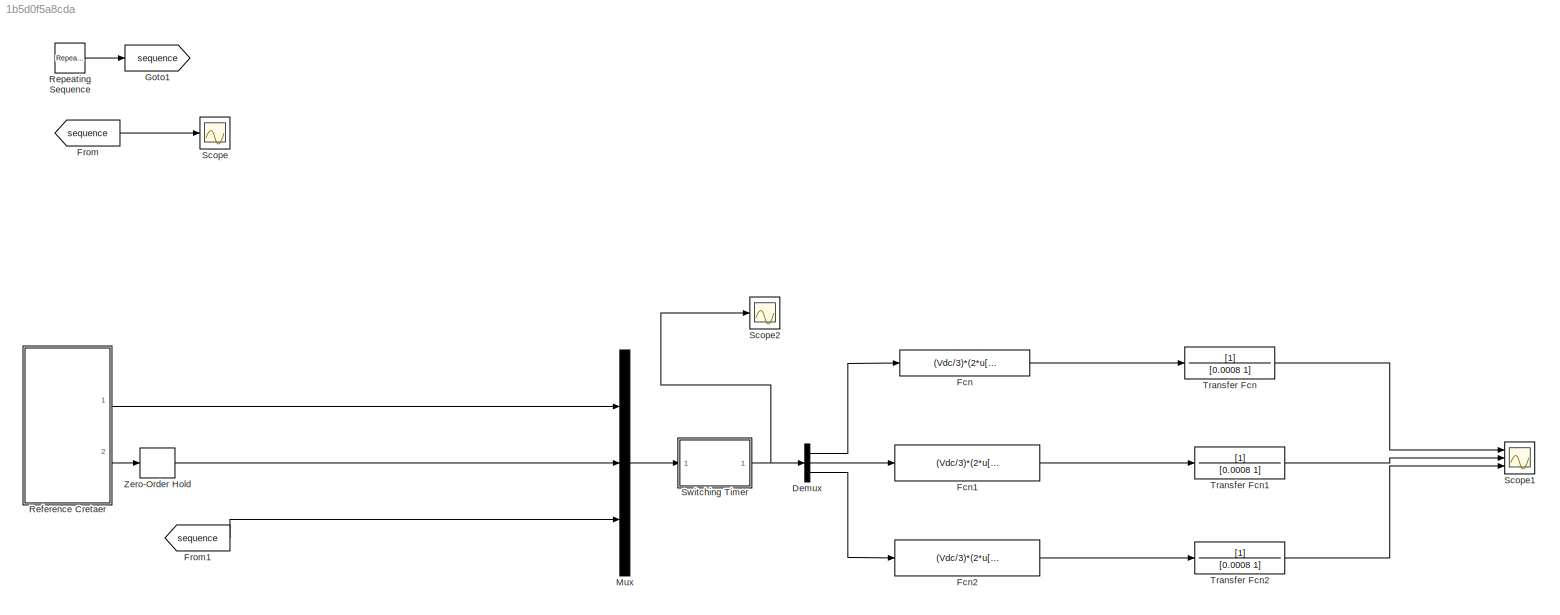
MODEL slx_1b5d0f5a8cda
KIND model
CONFIG AbsTol = auto
CONFIG EnableMultiTasking = off
CONFIG FixedStep = 1e-5
CONFIG MaxStep = auto
CONFIG MinStep = auto
CONFIG RelTol = 1e-3
CONFIG SampleTimeConstraint = Unconstrained
CONFIG Solver = FixedStepDiscrete
CONFIG SolverName = FixedStepDiscrete
CONFIG StartTime = 0.0
CONFIG StopTime = 0.2
BLOCK [Demux] Demux
  DisplayOption = bar
  Outputs = 3
  Ports = [1, 3]
BLOCK [Fcn] Fcn
  Commented = on
  Expr = (Vdc/3)*(2*u[1]-u[2]-u[3])
BLOCK [Fcn] Fcn1
  Commented = on
  Expr = (Vdc/3)*(2*u[2]-u[1]-u[3])
BLOCK [Fcn] Fcn2
  Commented = on
  Expr = (Vdc/3)*(2*u[3]-u[2]-u[1])
BLOCK [From] From
  GotoTag = sequence
BLOCK [From] From1
  GotoTag = sequence
BLOCK [Goto] Goto1
  GotoTag = sequence
BLOCK [Mux] Mux
  DisplayOption = bar
  Inputs = 3
  Ports = [3, 1]
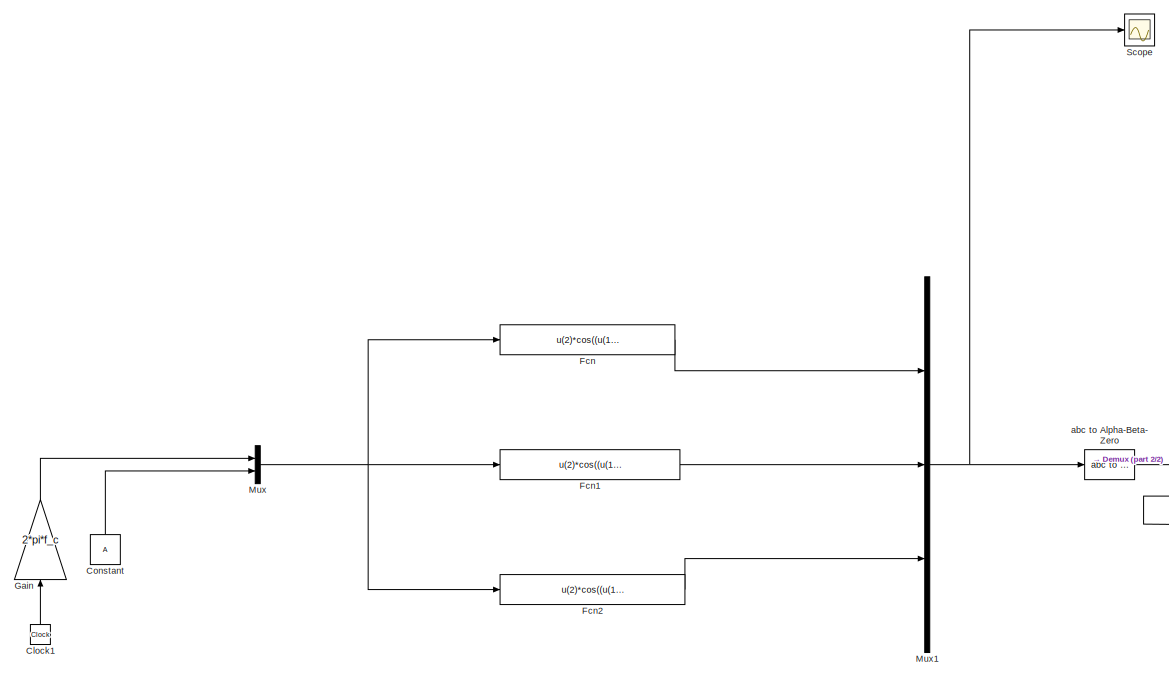
[diagram: Reference Cretaer - part 1/2, left side, full height]
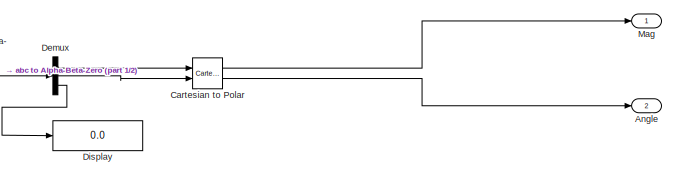
[diagram: Reference Cretaer - part 2/2, bottom right region]
BLOCK [SubSystem] Reference Cretaer
  Ports = [0, 2]
  RequestExecContextInheritance = off
BLOCK [Outport] Reference Cretaer/Angle
  IconDisplay = Port number
  Port = 2
BLOCK [Reference] Reference Cretaer/Cartesian to Polar  REF=simulink_extras/Transformations/Cartesian to
Polar
  Ports = [2, 2]
  SourceBlock = simulink_extras/Transformations/Cartesian to\nPolar
  SourceProductBaseCode = SL
  SourceProductName = Simulink
  SourceType = Cart2Polar
BLOCK [Clock] Reference Cretaer/Clock1
BLOCK [Constant] Reference Cretaer/Constant
  Value = A
BLOCK [Demux] Reference Cretaer/Demux
  DisplayOption = bar
  Outputs = 3
  Ports = [1, 3]
BLOCK [Display] Reference Cretaer/Display
  Decimation = 1
  Ports = [1]
BLOCK [Fcn] Reference Cretaer/Fcn
  Expr = u(2)*cos((u(1)))
BLOCK [Fcn] Reference Cretaer/Fcn1
  Expr = u(2)*cos((u(1))-2*pi/3)
BLOCK [Fcn] Reference Cretaer/Fcn2
  Expr = u(2)*cos((u(1))+2*pi/3)
BLOCK [Gain] Reference Cretaer/Gain
  Gain = 2*pi*f_c
  OutDataTypeStr = Inherit: Inherit via internal rule
  ParamDataTypeStr = Inherit: Inherit via internal rule
  SaturateOnIntegerOverflow = off
BLOCK [Outport] Reference Cretaer/Mag 
  IconDisplay = Port number
BLOCK [Mux] Reference Cretaer/Mux
  DisplayOption = bar
  Inputs = 2
  Ports = [2, 1]
BLOCK [Mux] Reference Cretaer/Mux1
  DisplayOption = bar
  Inputs = 3
  Ports = [3, 1]
BLOCK [Scope] Reference Cretaer/Scope
  Floating = off
  NumInputPorts = 1
  Ports = [1]
  ScopeSpecificationString = Simulink.scopes.TimeScopeBlockCfg('CurrentConfiguration', extmgr.ConfigurationSet(extmgr.Configuration('Core','General UI',true),extmgr.Configuration('Core','Source UI',true),extmgr.Configuration('Sources','WiredSimulink',true,'DataLoggingVariableName','ScopeData2'),extmgr.Configuration('Visuals','Time Domain',true,'SerializedDisplays',{struct('MinYLimReal','-1.25','MaxYLimReal','1.25','YLabelReal...<+1358ch>
BLOCK [Reference] Reference Cretaer/abc to Alpha-Beta-Zero  REF=powerlib_meascontrol/Transformations/abc to
Alpha-Beta-Zero
  Ports = [1, 1]
  SourceBlock = powerlib_meascontrol/Transformations/abc to\nAlpha-Beta-Zero
  SourceProductBaseCode = PS
  SourceProductName = Simscape Power Systems
  SourceType = abc to Alpha-Beta-Zero Transformation
BLOCK [Reference] Repeating Sequence  REF=simulink/Sources/Repeating
Sequence
  Ports = [0, 1]
  SourceBlock = simulink/Sources/Repeating\nSequence
  SourceProductBaseCode = SL
  SourceProductName = Simulink
  SourceType = Repeating table
BLOCK [Scope] Scope
  Floating = off
  NumInputPorts = 1
  Ports = [1]
  ScopeSpecificationString = Simulink.scopes.TimeScopeBlockCfg('CurrentConfiguration', extmgr.ConfigurationSet(extmgr.Configuration('Core','General UI',true),extmgr.Configuration('Core','Source UI',true),extmgr.Configuration('Sources','WiredSimulink',true),extmgr.Configuration('Visuals','Time Domain',true,'SerializedDisplays',{struct('MinYLimReal','1.00312','MaxYLimReal','1.05916','YLabelReal','','MinYLimMag','1.00312','MaxYL...<+1407ch>
BLOCK [Scope] Scope1
  Commented = on
  Floating = off
  NumInputPorts = 3
  Ports = [3]
  ScopeSpecificationString = Simulink.scopes.TimeScopeBlockCfg('CurrentConfiguration', extmgr.ConfigurationSet(extmgr.Configuration('Core','General UI',true),extmgr.Configuration('Core','Source UI',true),extmgr.Configuration('Sources','WiredSimulink',true,'DataLoggingVariableName','ScopeData1'),extmgr.Configuration('Visuals','Time Domain',true),extmgr.Configuration('Tools','Plot Navigation',true),extmgr.Configuration('Tools',...<+40ch>
BLOCK [Scope] Scope2
  Floating = off
  NumInputPorts = 1
  Ports = [1]
  ScopeSpecificationString = Simulink.scopes.TimeScopeBlockCfg('CurrentConfiguration', extmgr.ConfigurationSet(extmgr.Configuration('Core','General UI',true),extmgr.Configuration('Core','Source UI',true),extmgr.Configuration('Sources','WiredSimulink',true,'DataLoggingVariableName','ScopeData3'),extmgr.Configuration('Visuals','Time Domain',true),extmgr.Configuration('Tools','Plot Navigation',true),extmgr.Configuration('Tools',...<+40ch>
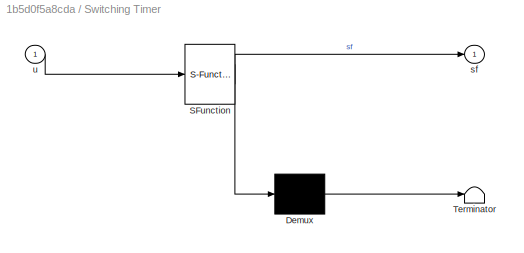
BLOCK [SubSystem] Switching Timer
  ErrorFcn = Stateflow.Translate.translate
  PermitHierarchicalResolution = ExplicitOnly
  Ports = [1, 1]
  RequestExecContextInheritance = off
  SFBlockType = MATLAB Function
  TreatAsAtomicUnit = on
BLOCK [Demux] Switching Timer/ Demux 
  Outputs = 1
  Ports = [1, 1]
BLOCK [S-Function] Switching Timer/ SFunction 
  EnableBusSupport = on
  FunctionName = sf_sfun
  PortCounts = [1 2]
  Ports = [1, 2]
  SFcnIsStateOwnerBlock = off
  SFunctionDeploymentMode = off
  Tag = Stateflow S-Function SpaceVectorPWM 2
BLOCK [Terminator] Switching Timer/ Terminator 
BLOCK [Outport] Switching Timer/sf
  IconDisplay = Port number
BLOCK [Inport] Switching Timer/u
  IconDisplay = Port number
BLOCK [TransferFcn] Transfer Fcn
  Commented = on
  Denominator = [0.0008 1]
BLOCK [TransferFcn] Transfer Fcn1
  Commented = on
  Denominator = [0.0008 1]
BLOCK [TransferFcn] Transfer Fcn2
  Commented = on
  Denominator = [0.0008 1]
BLOCK [ZeroOrderHold] Zero-Order Hold
  SampleTime = -1
LINE Demux:1 -> Fcn:1
LINE Demux:2 -> Fcn1:1
LINE Demux:3 -> Fcn2:1
LINE Fcn1:1 -> Transfer Fcn1:1
LINE Fcn2:1 -> Transfer Fcn2:1
LINE Fcn:1 -> Transfer Fcn:1
LINE From1:1 -> Mux:3
LINE From:1 -> Scope:1
LINE Mux:1 -> Switching Timer:1
LINE Reference Cretaer/Cartesian to Polar:1 -> Reference Cretaer/Mag :1
LINE Reference Cretaer/Cartesian to Polar:2 -> Reference Cretaer/Angle:1
LINE Reference Cretaer/Clock1:1 -> Reference Cretaer/Gain:1
LINE Reference Cretaer/Constant:1 -> Reference Cretaer/Mux:2
LINE Reference Cretaer/Demux:1 -> Reference Cretaer/Cartesian to Polar:1
LINE Reference Cretaer/Demux:2 -> Reference Cretaer/Cartesian to Polar:2
LINE Reference Cretaer/Demux:3 -> Reference Cretaer/Display:1
LINE Reference Cretaer/Fcn1:1 -> Reference Cretaer/Mux1:2
LINE Reference Cretaer/Fcn2:1 -> Reference Cretaer/Mux1:3
LINE Reference Cretaer/Fcn:1 -> Reference Cretaer/Mux1:1
LINE Reference Cretaer/Gain:1 -> Reference Cretaer/Mux:1
NET Reference Cretaer/Mux1:1 -> Reference Cretaer/Scope:1, Reference Cretaer/abc to Alpha-Beta-Zero:1
NET Reference Cretaer/Mux:1 -> Reference Cretaer/Fcn1:1, Reference Cretaer/Fcn2:1, Reference Cretaer/Fcn:1
LINE Reference Cretaer/abc to Alpha-Beta-Zero:1 -> Reference Cretaer/Demux:1
LINE Reference Cretaer:1 -> Mux:1
LINE Reference Cretaer:2 -> Zero-Order Hold:1
LINE Repeating Sequence:1 -> Goto1:1
NET Switching Timer:1 -> Demux:1, Scope2:1
LINE Transfer Fcn1:1 -> Scope1:2
LINE Transfer Fcn2:1 -> Scope1:3
LINE Transfer Fcn:1 -> Scope1:1
LINE Zero-Order Hold:1 -> Mux:2
note: NET lines group one-source signal fan-out (src -> all destinations, sorted); 1:1 wires keep LINE
CHART Switching Timer states=1 transitions=1
  STATE_LABEL 'eML_blk_kernel()'
  STATE_LABEL 'SCRIPT:\n%Matlab Code to generate Switching functions\n% Inputs are magnitude u1(:),angle u2(:)\n% and ramp time signal for comparison u3(:)\nfunction sf =SwitchingTimer(u)\nts=0.0002;vdc=1;peak_phase_max= vdc/sqrt(3);\nx=u(2); y=u(3); mag=(u(1)/peak_phase_max) * ts;\n%sector I\n if (x>=0) & (x<pi/3)\n ta = mag * sin(pi/3-x);tb = mag * sin(x);\n t0 =(ts-ta-tb);\nt1=[t0/4 ta/2 tb/2 t0/2 tb/2 ta/2 t0/4];t1=cum...<+1673ch>'
